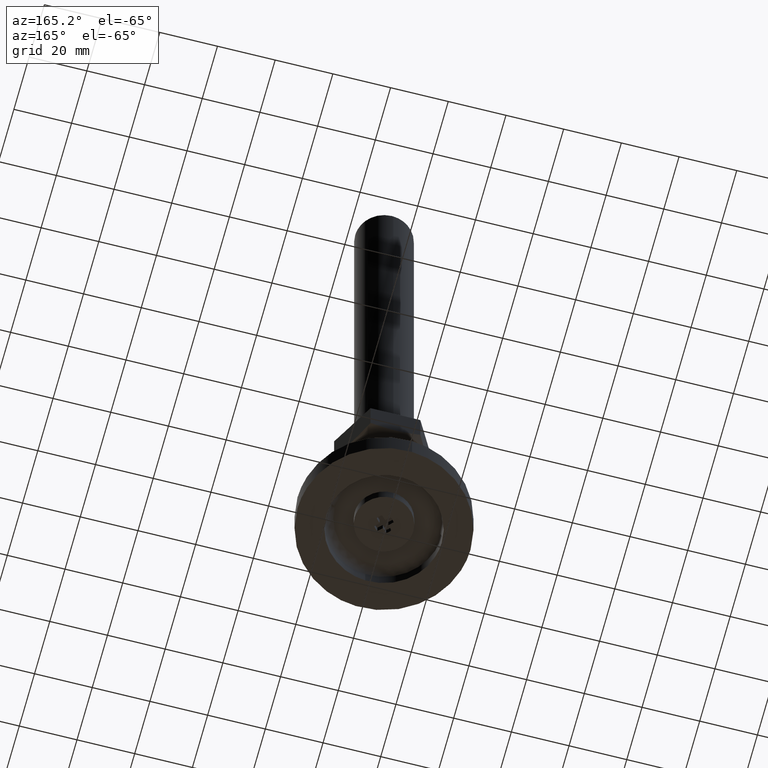
[diagram: clean part render]
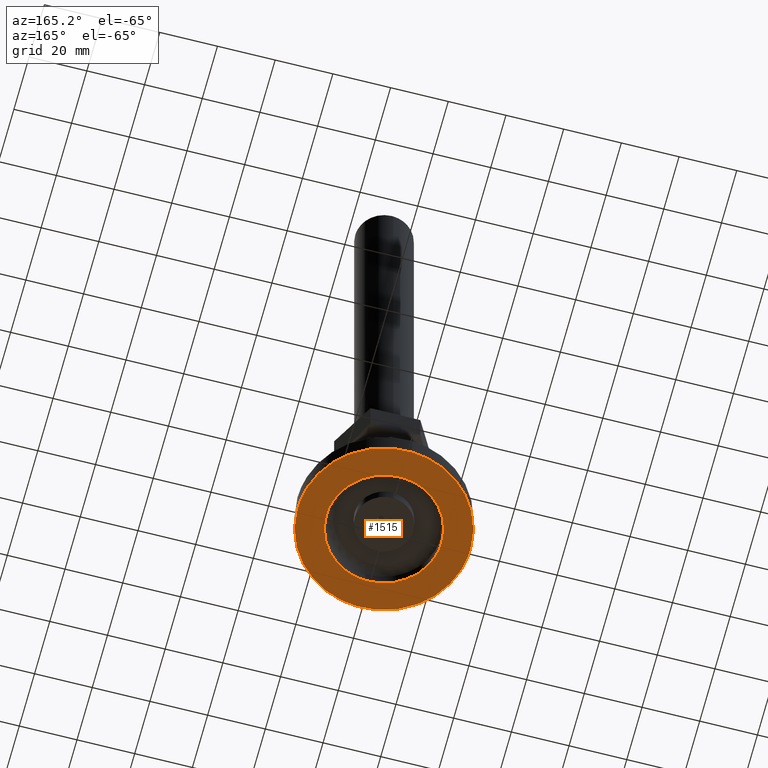
[diagram: same view with one face highlighted and labeled with its STEP entity id]
A machine part, auxiliary view. The second image highlights one B-rep face of the part: STEP entity #1515.
In plain terms, the highlighted face is a freeform B-spline surface patch.
Its self-contained STEP definition (entity closure, byte-faithful):
#1272=CARTESIAN_POINT('',(-1.831406183156627,29.944047010879910,3.191891E-016));
#1273=VERTEX_POINT('',#1272);
#1281=CARTESIAN_POINT('',(1.831406183156627,-29.944047010879910,3.191891E-016));
#1282=VERTEX_POINT('',#1281);
#1288=CARTESIAN_POINT('',(30.0,0.0,0.0));
#1289=VERTEX_POINT('',#1288);
#1290=CARTESIAN_POINT('',(30.0,0.0,0.0));
#1291=CARTESIAN_POINT('',(29.999999999998725,-28.221229221166293,1.595946E-016));
#1292=CARTESIAN_POINT('',(1.831406183156627,-29.944047010879906,3.191891E-016));
#1300=(BOUNDED_CURVE()B_SPLINE_CURVE(2,(#1290,#1291,#1292),.UNSPECIFIED.,.F.,.U.)B_SPLINE_CURVE_WITH_KNOTS((3,3),(0.500000000000000,0.739333250374054),.UNSPECIFIED.)CURVE()GEOMETRIC_REPRESENTATION_ITEM()RATIONAL_B_SPLINE_CURVE((1.0,0.719603655715429,0.976072659195888))REPRESENTATION_ITEM(''));
#1301=EDGE_CURVE('',#1289,#1282,#1300,.T.);
#1303=CARTESIAN_POINT('',(-1.831406183156627,29.944047010879906,3.191891E-016));
#1304=CARTESIAN_POINT('',(-0.916557827412190,29.999999999958849,3.146023E-016));
#1305=CARTESIAN_POINT('',(2.478457E-012,29.999999999959488,3.097264E-016));
#1306=CARTESIAN_POINT('',(30.000000000001194,29.999999999980364,1.501318E-016));
#1307=CARTESIAN_POINT('',(30.0,0.0,0.0));
#1315=(BOUNDED_CURVE()B_SPLINE_CURVE(2,(#1303,#1304,#1305,#1306,#1307),.UNSPECIFIED.,.F.,.U.)B_SPLINE_CURVE_WITH_KNOTS((3,2,3),(0.239333250374054,0.250000000000000,0.500000000000000),.UNSPECIFIED.)CURVE()GEOMETRIC_REPRESENTATION_ITEM()RATIONAL_B_SPLINE_CURVE((0.976072659195888,0.987503125471118,1.0,0.707106781186547,1.0))REPRESENTATION_ITEM(''));
#1316=EDGE_CURVE('',#1273,#1289,#1315,.T.);
#1340=CARTESIAN_POINT('',(-30.0,0.0,0.0));
#1341=VERTEX_POINT('',#1340);
#1342=CARTESIAN_POINT('',(-30.0,0.0,0.0));
#1343=CARTESIAN_POINT('',(-29.999999999998725,28.221229221166293,1.595946E-016));
#1344=CARTESIAN_POINT('',(-1.831406183156627,29.944047010879906,3.191891E-016));
#1352=(BOUNDED_CURVE()B_SPLINE_CURVE(2,(#1342,#1343,#1344),.UNSPECIFIED.,.F.,.U.)B_SPLINE_CURVE_WITH_KNOTS((3,3),(0.0,0.239333250374054),.UNSPECIFIED.)CURVE()GEOMETRIC_REPRESENTATION_ITEM()RATIONAL_B_SPLINE_CURVE((1.0,0.719603655715429,0.976072659195888))REPRESENTATION_ITEM(''));
#1353=EDGE_CURVE('',#1341,#1273,#1352,.T.);
#1355=CARTESIAN_POINT('',(1.831406183156627,-29.944047010879906,3.191891E-016));
#1356=CARTESIAN_POINT('',(0.916557827412188,-29.999999999958849,3.146023E-016));
#1357=CARTESIAN_POINT('',(-2.482982E-012,-29.999999999959488,3.097264E-016));
#1358=CARTESIAN_POINT('',(-30.000000000001208,-29.999999999980364,1.501318E-016));
#1359=CARTESIAN_POINT('',(-30.0,0.0,0.0));
#1367=(BOUNDED_CURVE()B_SPLINE_CURVE(2,(#1355,#1356,#1357,#1358,#1359),.UNSPECIFIED.,.F.,.U.)B_SPLINE_CURVE_WITH_KNOTS((3,2,3),(0.739333250374054,0.750000000000000,1.0),.UNSPECIFIED.)CURVE()GEOMETRIC_REPRESENTATION_ITEM()RATIONAL_B_SPLINE_CURVE((0.976072659195888,0.987503125471118,1.0,0.707106781186547,1.0))REPRESENTATION_ITEM(''));
#1368=EDGE_CURVE('',#1282,#1341,#1367,.T.);
#1394=CARTESIAN_POINT('',(-1.220944928104905,19.962697550227610,1.630279E-012));
#1395=VERTEX_POINT('',#1394);
#1396=CARTESIAN_POINT('',(20.0,0.0,0.0));
#1397=VERTEX_POINT('',#1396);
#1398=CARTESIAN_POINT('',(-1.220944928104905,19.962697550227610,1.630279E-012));
#1399=CARTESIAN_POINT('',(-0.611042298417838,19.999999999983487,1.606852E-012));
#1400=CARTESIAN_POINT('',(9.952180E-013,19.999999999983739,1.581947E-012));
#1401=CARTESIAN_POINT('',(20.000000000000480,19.999999999992120,7.668078E-013));
#1402=CARTESIAN_POINT('',(20.0,0.0,0.0));
#1410=(BOUNDED_CURVE()B_SPLINE_CURVE(2,(#1398,#1399,#1400,#1401,#1402),.UNSPECIFIED.,.F.,.U.)B_SPLINE_CURVE_WITH_KNOTS((3,2,3),(0.239333185784320,0.250000000000000,0.500000000000000),.UNSPECIFIED.)CURVE()GEOMETRIC_REPRESENTATION_ITEM()RATIONAL_B_SPLINE_CURVE((0.976072520767483,0.987503049799538,1.0,0.707106781186548,1.0))REPRESENTATION_ITEM(''));
#1411=EDGE_CURVE('',#1395,#1397,#1410,.T.);
#1413=CARTESIAN_POINT('',(1.220944928104905,-19.962697550227610,1.630279E-012));
#1414=VERTEX_POINT('',#1413);
#1415=CARTESIAN_POINT('',(20.0,0.0,0.0));
#1416=CARTESIAN_POINT('',(19.999999999999485,-18.814145758227784,8.151396E-013));
#1417=CARTESIAN_POINT('',(1.220944928104905,-19.962697550227610,1.630279E-012));
#1425=(BOUNDED_CURVE()B_SPLINE_CURVE(2,(#1415,#1416,#1417),.UNSPECIFIED.,.F.,.U.)B_SPLINE_CURVE_WITH_KNOTS((3,3),(0.500000000000000,0.739333185784320),.UNSPECIFIED.)CURVE()GEOMETRIC_REPRESENTATION_ITEM()RATIONAL_B_SPLINE_CURVE((1.0,0.719603731387010,0.976072520767484))REPRESENTATION_ITEM(''));
#1426=EDGE_CURVE('',#1397,#1414,#1425,.T.);
#1461=CARTESIAN_POINT('',(-20.0,0.0,0.0));
#1462=VERTEX_POINT('',#1461);
#1463=CARTESIAN_POINT('',(-20.0,0.0,0.0));
#1464=CARTESIAN_POINT('',(-19.999999999999481,18.814145758227781,8.151396E-013));
#1465=CARTESIAN_POINT('',(-1.220944928104905,19.962697550227610,1.630279E-012));
#1473=(BOUNDED_CURVE()B_SPLINE_CURVE(2,(#1463,#1464,#1465),.UNSPECIFIED.,.F.,.U.)B_SPLINE_CURVE_WITH_KNOTS((3,3),(0.0,0.239333185784320),.UNSPECIFIED.)CURVE()GEOMETRIC_REPRESENTATION_ITEM()RATIONAL_B_SPLINE_CURVE((1.0,0.719603731387010,0.976072520767483))REPRESENTATION_ITEM(''));
#1474=EDGE_CURVE('',#1462,#1395,#1473,.T.);
#1480=CARTESIAN_POINT('',(1.220944928104905,-19.962697550227610,1.630279E-012));
#1481=CARTESIAN_POINT('',(0.611042298417841,-19.999999999983483,1.606852E-012));
#1482=CARTESIAN_POINT('',(-9.891851E-013,-19.999999999983739,1.581947E-012));
#1483=CARTESIAN_POINT('',(-20.000000000000480,-19.999999999992120,7.668078E-013));
#1484=CARTESIAN_POINT('',(-20.0,0.0,0.0));
#1492=(BOUNDED_CURVE()B_SPLINE_CURVE(2,(#1480,#1481,#1482,#1483,#1484),.UNSPECIFIED.,.F.,.U.)B_SPLINE_CURVE_WITH_KNOTS((3,2,3),(0.739333185784320,0.750000000000000,1.0),.UNSPECIFIED.)CURVE()GEOMETRIC_REPRESENTATION_ITEM()RATIONAL_B_SPLINE_CURVE((0.976072520767484,0.987503049799538,1.0,0.707106781186548,1.0))REPRESENTATION_ITEM(''));
#1493=EDGE_CURVE('',#1414,#1462,#1492,.T.);
#1498=CARTESIAN_POINT('',(-32.996999883708362,-32.996261619275643,0.0));
#1499=CARTESIAN_POINT('',(32.997001493033771,-32.996261619275643,0.0));
#1500=CARTESIAN_POINT('',(-32.996999883708362,32.996260546392037,0.0));
#1501=CARTESIAN_POINT('',(32.997001493033771,32.996260546392037,0.0));
#1502=B_SPLINE_SURFACE_WITH_KNOTS('',1,1,((#1498,#1500),(#1499,#1501)),.UNSPECIFIED.,.F.,.F.,.U.,(2,2),(2,2),(0.0,65.994001376742119),(0.0,65.992522165667680),.UNSPECIFIED.);
#1503=ORIENTED_EDGE('',*,*,#1353,.T.);
#1504=ORIENTED_EDGE('',*,*,#1316,.T.);
#1505=ORIENTED_EDGE('',*,*,#1301,.T.);
#1506=ORIENTED_EDGE('',*,*,#1368,.T.);
#1507=EDGE_LOOP('',(#1503,#1504,#1505,#1506));
#1508=FACE_OUTER_BOUND('',#1507,.T.);
#1509=ORIENTED_EDGE('',*,*,#1426,.F.);
#1510=ORIENTED_EDGE('',*,*,#1411,.F.);
#1511=ORIENTED_EDGE('',*,*,#1474,.F.);
#1512=ORIENTED_EDGE('',*,*,#1493,.F.);
#1513=EDGE_LOOP('',(#1509,#1510,#1511,#1512));
#1514=FACE_BOUND('',#1513,.T.);
#1515=ADVANCED_FACE('',(#1508,#1514),#1502,.F.);